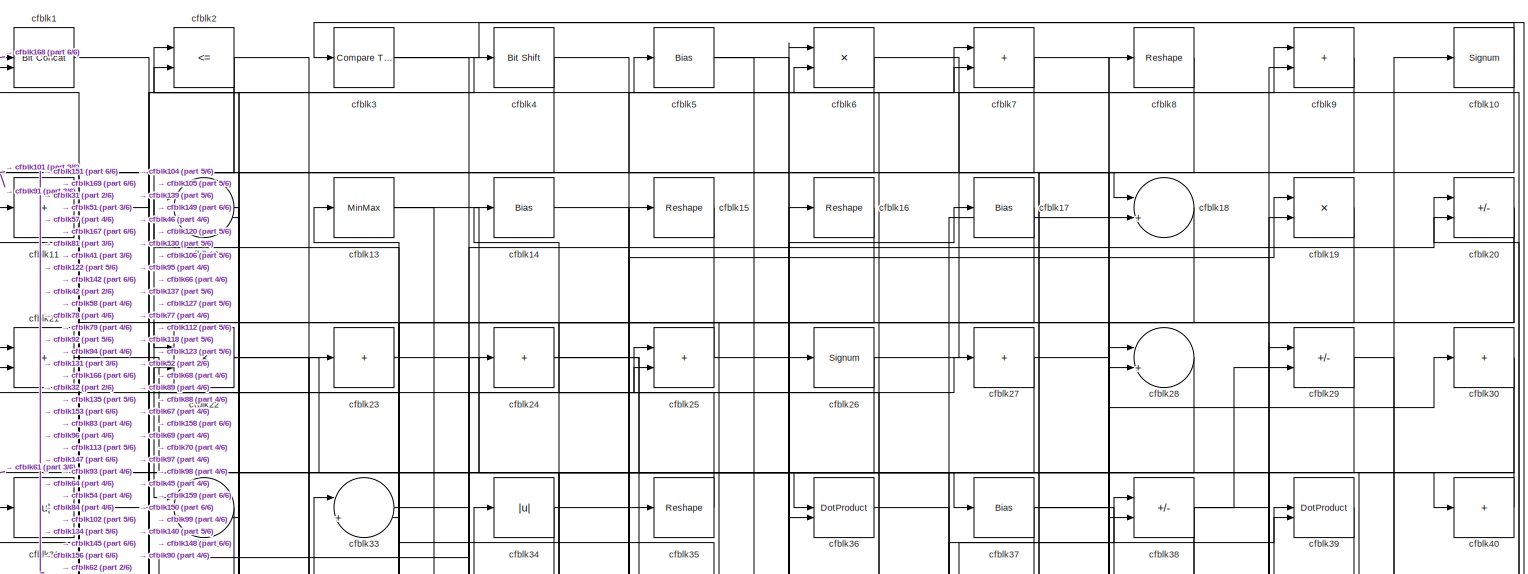
[diagram: root canvas - part 1/6, full width, top band]
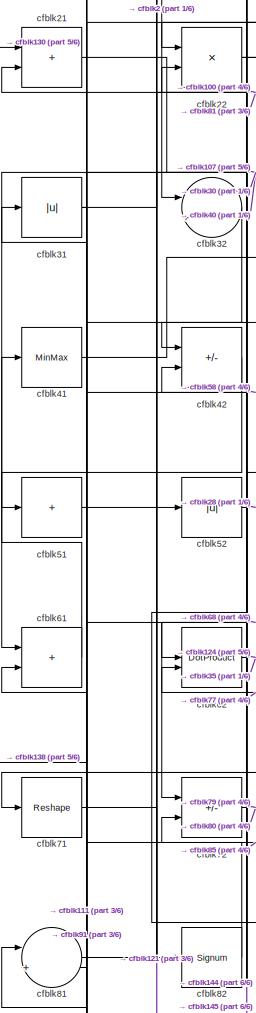
[diagram: root canvas - part 2/6, top left region]
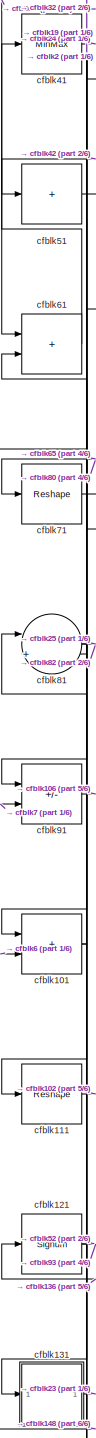
[diagram: root canvas - part 3/6, middle left region]
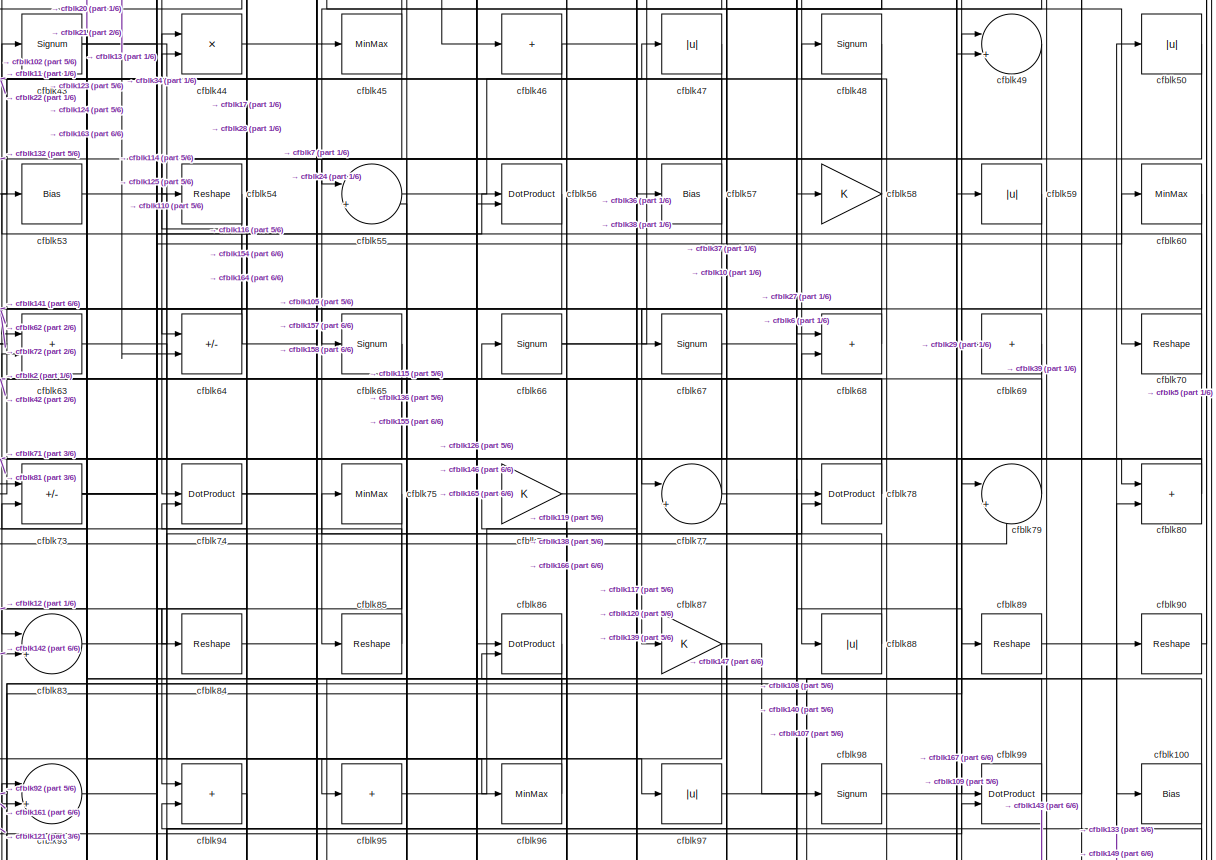
[diagram: root canvas - part 4/6, full width, middle band]
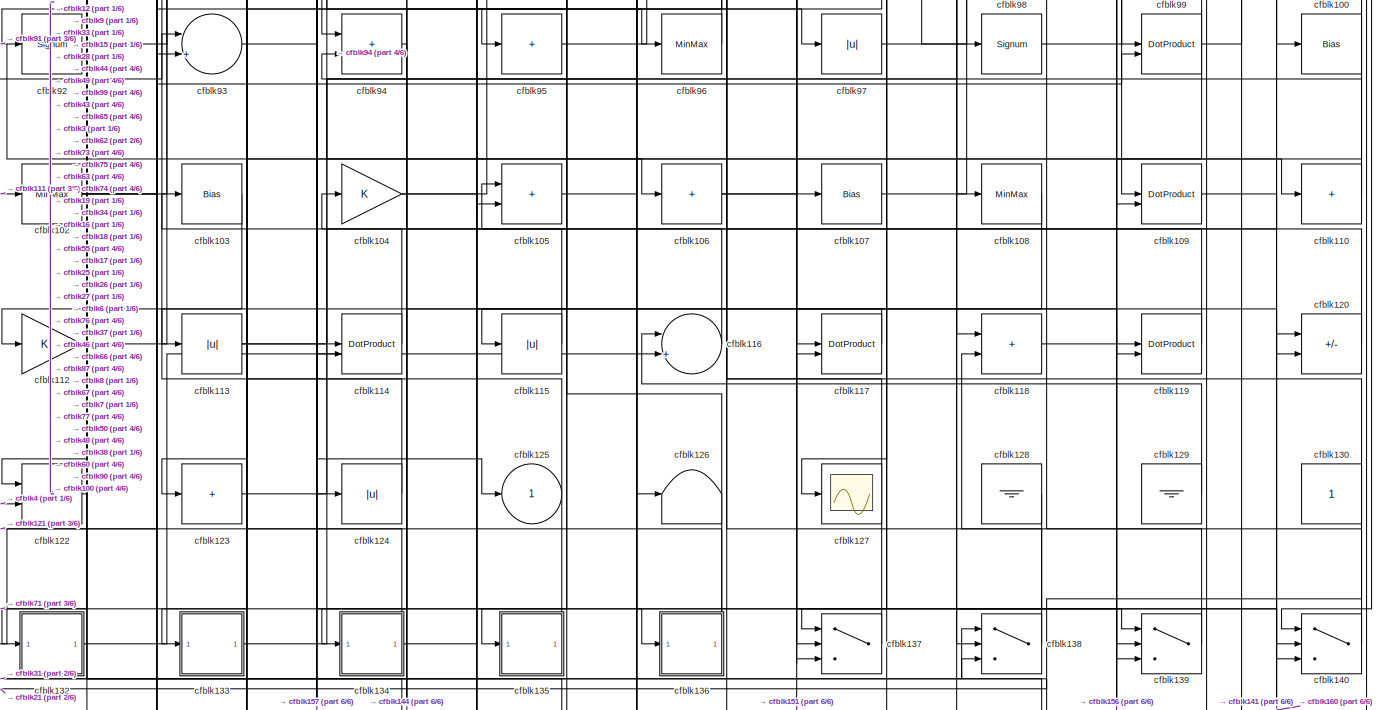
[diagram: root canvas - part 5/6, full width, bottom band]
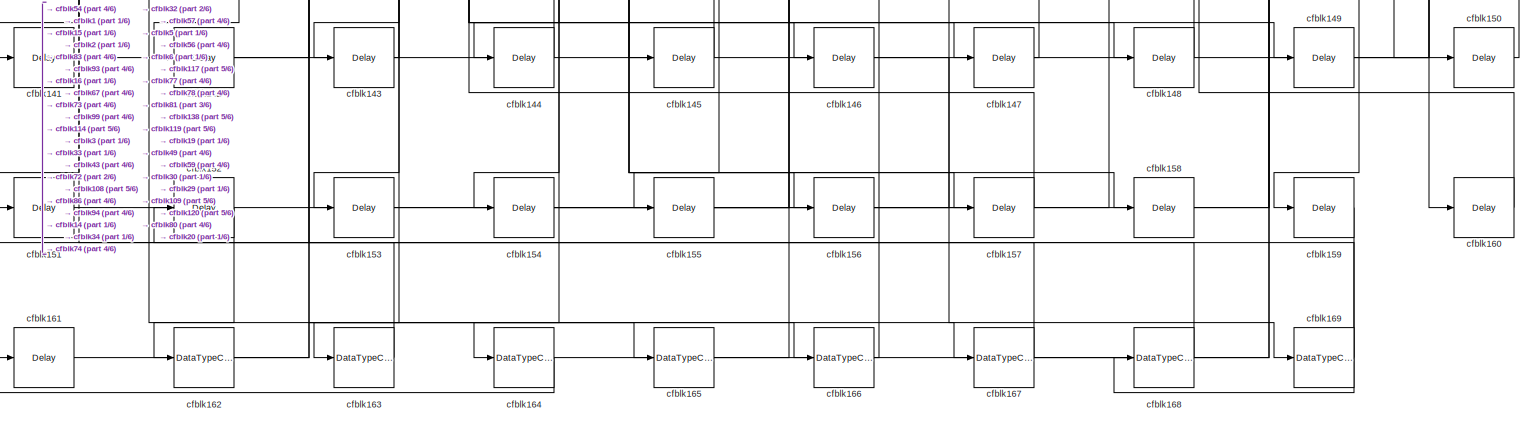
[diagram: root canvas - part 6/6, full width, bottom band]
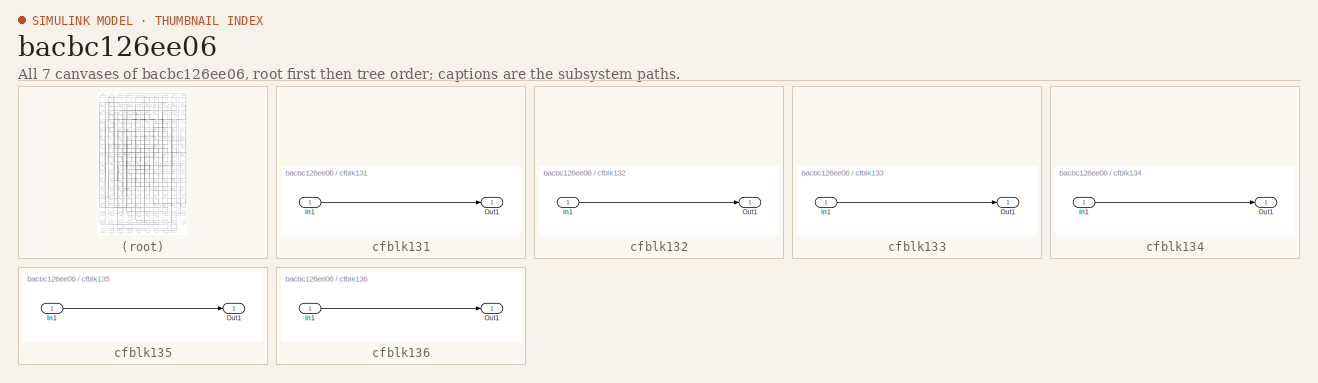
[diagram: thumbnail index - all 7 canvases of the model, root first then tree order]
MODEL slx_bacbc126ee06
KIND model
CONFIG AbsTol = auto
CONFIG EnableMultiTasking = off
CONFIG FixedStep = auto
CONFIG MaxStep = auto
CONFIG MinStep = auto
CONFIG RelTol = 1e-3
CONFIG SampleTimeConstraint = Unconstrained
CONFIG SolverName = VariableStepAuto
CONFIG StartTime = 0.0
CONFIG StopTime = 10.0
BLOCK [Reference] cfblk1  REF=hdlsllib/Logic and Bit
Operations/Bit Concat
  SourceBlock = hdlsllib/Logic and Bit\nOperations/Bit Concat
  SourceType = Bit Concat
BLOCK [Signum] cfblk10
BLOCK [Bias] cfblk100
  Bias = 0.0
  SaturateOnIntegerOverflow = off
BLOCK [Sum] cfblk101
  IconShape = rectangular
BLOCK [MinMax] cfblk102
BLOCK [Bias] cfblk103
  Bias = 0.0
  SaturateOnIntegerOverflow = off
BLOCK [Gain] cfblk104
BLOCK [Sum] cfblk105
  IconShape = rectangular
BLOCK [Sum] cfblk106
  IconShape = rectangular
  Inputs = +
BLOCK [Bias] cfblk107
  Bias = 0.0
  SaturateOnIntegerOverflow = off
BLOCK [MinMax] cfblk108
BLOCK [DotProduct] cfblk109
  OutDataTypeStr = Inherit: Inherit via internal rule
BLOCK [Sum] cfblk11
  IconShape = rectangular
  Inputs = +
BLOCK [Sum] cfblk110
  IconShape = rectangular
  Inputs = +
BLOCK [Reshape] cfblk111
BLOCK [Gain] cfblk112
BLOCK [Abs] cfblk113
  SaturateOnIntegerOverflow = off
BLOCK [DotProduct] cfblk114
  OutDataTypeStr = Inherit: Inherit via internal rule
BLOCK [Abs] cfblk115
  SaturateOnIntegerOverflow = off
BLOCK [Sum] cfblk116
  Inputs = |++
BLOCK [DotProduct] cfblk117
  OutDataTypeStr = Inherit: Inherit via internal rule
BLOCK [Sum] cfblk118
  IconShape = rectangular
BLOCK [DotProduct] cfblk119
  OutDataTypeStr = Inherit: Inherit via internal rule
BLOCK [Sum] cfblk12
  Inputs = |++
BLOCK [Sum] cfblk120
  IconShape = rectangular
  Inputs = +-
BLOCK [Signum] cfblk121
BLOCK [Sum] cfblk122
  IconShape = rectangular
BLOCK [Sum] cfblk123
  IconShape = rectangular
  Inputs = +
BLOCK [Abs] cfblk124
  SaturateOnIntegerOverflow = off
BLOCK [Outport] cfblk125
  VectorParamsAs1DForOutWhenUnconnected = off
BLOCK [Terminator] cfblk126
BLOCK [Scope] cfblk127
  Floating = off
  NumInputPorts = 1
  ScopeSpecificationString = Simulink.scopes.TimeScopeBlockCfg('CurrentConfiguration', extmgr.ConfigurationSet(extmgr.Configuration('Core','General UI',true),extmgr.Configuration('Core','Source UI',true),extmgr.Configuration('Sources','WiredSimulink',true,'DataLoggingVariableName','ScopeData2','DataLoggingSaveFormat','Array','DataLoggingLimitDataPoints',true,'DataLoggingDecimation','1'),extmgr.Configuration('Visuals','Time Do...<+868ch>
BLOCK [Ground] cfblk128
BLOCK [Ground] cfblk129
BLOCK [MinMax] cfblk13
BLOCK [Constant] cfblk130
  SampleTime = -1
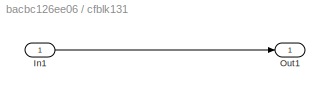
BLOCK [SubSystem] cfblk131
  LibrarySourceBlock = hdlsllib/Ports &\nSubsystems/Subsystem
BLOCK [Inport] cfblk131/In1
BLOCK [Outport] cfblk131/Out1
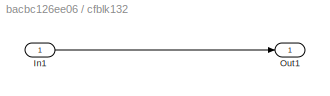
BLOCK [SubSystem] cfblk132
  LibrarySourceBlock = hdlsllib/Ports &\nSubsystems/Subsystem
BLOCK [Inport] cfblk132/In1
BLOCK [Outport] cfblk132/Out1
BLOCK [SubSystem] cfblk133
  LibrarySourceBlock = hdlsllib/Ports &\nSubsystems/Subsystem
BLOCK [Inport] cfblk133/In1
BLOCK [Outport] cfblk133/Out1
BLOCK [SubSystem] cfblk134
  LibrarySourceBlock = hdlsllib/Ports &\nSubsystems/Subsystem
BLOCK [Inport] cfblk134/In1
BLOCK [Outport] cfblk134/Out1
BLOCK [SubSystem] cfblk135
  LibrarySourceBlock = hdlsllib/Ports &\nSubsystems/Subsystem
BLOCK [Inport] cfblk135/In1
BLOCK [Outport] cfblk135/Out1
BLOCK [SubSystem] cfblk136
  LibrarySourceBlock = hdlsllib/Ports &\nSubsystems/Subsystem
BLOCK [Inport] cfblk136/In1
BLOCK [Outport] cfblk136/Out1
BLOCK [Switch] cfblk137
  InputSameDT = off
  SaturateOnIntegerOverflow = off
BLOCK [Switch] cfblk138
  InputSameDT = off
  SaturateOnIntegerOverflow = off
BLOCK [Switch] cfblk139
  InputSameDT = off
  SaturateOnIntegerOverflow = off
BLOCK [Bias] cfblk14
  Bias = 0.0
  SaturateOnIntegerOverflow = off
BLOCK [Switch] cfblk140
  InputSameDT = off
  SaturateOnIntegerOverflow = off
BLOCK [Delay] cfblk141
  InputPortMap = u0
  SampleTime = 1
BLOCK [Delay] cfblk142
  InputPortMap = u0
  SampleTime = 1
BLOCK [Delay] cfblk143
  InputPortMap = u0
  SampleTime = 1
BLOCK [Delay] cfblk144
  InputPortMap = u0
  SampleTime = 1
BLOCK [Delay] cfblk145
  InputPortMap = u0
  SampleTime = 1
BLOCK [Delay] cfblk146
  InputPortMap = u0
  SampleTime = 1
BLOCK [Delay] cfblk147
  InputPortMap = u0
  SampleTime = 1
BLOCK [Delay] cfblk148
  InputPortMap = u0
  SampleTime = 1
BLOCK [Delay] cfblk149
  InputPortMap = u0
  SampleTime = 1
BLOCK [Reshape] cfblk15
BLOCK [Delay] cfblk150
  InputPortMap = u0
  SampleTime = 1
BLOCK [Delay] cfblk151
  InputPortMap = u0
  SampleTime = 1
BLOCK [Delay] cfblk152
  InputPortMap = u0
  SampleTime = 1
BLOCK [Delay] cfblk153
  InputPortMap = u0
  SampleTime = 1
BLOCK [Delay] cfblk154
  InputPortMap = u0
  SampleTime = 1
BLOCK [Delay] cfblk155
  InputPortMap = u0
  SampleTime = 1
BLOCK [Delay] cfblk156
  InputPortMap = u0
  SampleTime = 1
BLOCK [Delay] cfblk157
  InputPortMap = u0
  SampleTime = 1
BLOCK [Delay] cfblk158
  InputPortMap = u0
  SampleTime = 1
BLOCK [Delay] cfblk159
  InputPortMap = u0
  SampleTime = 1
BLOCK [Reshape] cfblk16
BLOCK [Delay] cfblk160
  InputPortMap = u0
  SampleTime = 1
BLOCK [Delay] cfblk161
  InputPortMap = u0
  SampleTime = 1
BLOCK [DataTypeConversion] cfblk162
  OutDataTypeStr = uint8
  RndMeth = Floor
  SaturateOnIntegerOverflow = off
BLOCK [DataTypeConversion] cfblk163
  OutDataTypeStr = uint8
  RndMeth = Floor
  SaturateOnIntegerOverflow = off
BLOCK [DataTypeConversion] cfblk164
  RndMeth = Floor
  SaturateOnIntegerOverflow = off
BLOCK [DataTypeConversion] cfblk165
  OutDataTypeStr = uint8
  RndMeth = Floor
  SaturateOnIntegerOverflow = off
BLOCK [DataTypeConversion] cfblk166
  OutDataTypeStr = uint8
  RndMeth = Floor
  SaturateOnIntegerOverflow = off
BLOCK [DataTypeConversion] cfblk167
  RndMeth = Floor
  SaturateOnIntegerOverflow = off
BLOCK [DataTypeConversion] cfblk168
  OutDataTypeStr = uint8
  RndMeth = Floor
  SaturateOnIntegerOverflow = off
BLOCK [DataTypeConversion] cfblk169
  OutDataTypeStr = uint8
  RndMeth = Floor
  SaturateOnIntegerOverflow = off
BLOCK [Bias] cfblk17
  Bias = 0.0
  SaturateOnIntegerOverflow = off
BLOCK [Sum] cfblk18
  Inputs = |++
BLOCK [Product] cfblk19
  Inputs = */
  RndMeth = Zero
  SaturateOnIntegerOverflow = on
BLOCK [RelationalOperator] cfblk2
  InputSameDT = off
  Operator = <=
  OutDataTypeStr = boolean
BLOCK [Sum] cfblk20
  IconShape = rectangular
  Inputs = +-
BLOCK [Sum] cfblk21
  IconShape = rectangular
BLOCK [Product] cfblk22
  Inputs = */
  RndMeth = Zero
  SaturateOnIntegerOverflow = on
BLOCK [Sum] cfblk23
  IconShape = rectangular
  Inputs = +
BLOCK [Sum] cfblk24
  IconShape = rectangular
  Inputs = +
BLOCK [Sum] cfblk25
  IconShape = rectangular
BLOCK [Signum] cfblk26
BLOCK [Sum] cfblk27
  IconShape = rectangular
  Inputs = +
BLOCK [Sum] cfblk28
  Inputs = |++
BLOCK [Sum] cfblk29
  IconShape = rectangular
  Inputs = +-
BLOCK [Reference] cfblk3  REF=hdlsllib/Logic and Bit
Operations/Compare
To Zero
  SourceBlock = hdlsllib/Logic and Bit\nOperations/Compare\nTo Zero
  SourceType = Compare To Zero
BLOCK [Sum] cfblk30
  IconShape = rectangular
  Inputs = +
BLOCK [Abs] cfblk31
  SaturateOnIntegerOverflow = off
BLOCK [Sum] cfblk32
  Inputs = |++
BLOCK [Sum] cfblk33
  Inputs = |++
BLOCK [Abs] cfblk34
  SaturateOnIntegerOverflow = off
BLOCK [Reshape] cfblk35
BLOCK [DotProduct] cfblk36
  OutDataTypeStr = Inherit: Inherit via internal rule
BLOCK [Bias] cfblk37
  Bias = 0.0
  SaturateOnIntegerOverflow = off
BLOCK [Sum] cfblk38
  IconShape = rectangular
  Inputs = +-
BLOCK [DotProduct] cfblk39
  OutDataTypeStr = Inherit: Inherit via internal rule
BLOCK [Reference] cfblk4  REF=hdlsllib/Logic and Bit
Operations/Bit Shift
  SourceBlock = hdlsllib/Logic and Bit\nOperations/Bit Shift
  SourceType = Bit Shift
BLOCK [Sum] cfblk40
  IconShape = rectangular
  Inputs = +
BLOCK [MinMax] cfblk41
BLOCK [Sum] cfblk42
  IconShape = rectangular
  Inputs = +-
BLOCK [Signum] cfblk43
BLOCK [Product] cfblk44
  Inputs = */
  RndMeth = Zero
  SaturateOnIntegerOverflow = on
BLOCK [MinMax] cfblk45
BLOCK [Sum] cfblk46
  IconShape = rectangular
  Inputs = +
BLOCK [Abs] cfblk47
  SaturateOnIntegerOverflow = off
BLOCK [Signum] cfblk48
BLOCK [Sum] cfblk49
  Inputs = |++
BLOCK [Bias] cfblk5
  Bias = 0.0
  SaturateOnIntegerOverflow = off
BLOCK [Abs] cfblk50
  SaturateOnIntegerOverflow = off
BLOCK [Sum] cfblk51
  IconShape = rectangular
  Inputs = +
BLOCK [Abs] cfblk52
  SaturateOnIntegerOverflow = off
BLOCK [Bias] cfblk53
  Bias = 0.0
  SaturateOnIntegerOverflow = off
BLOCK [Reshape] cfblk54
BLOCK [Sum] cfblk55
  Inputs = |++
BLOCK [DotProduct] cfblk56
  OutDataTypeStr = Inherit: Inherit via internal rule
BLOCK [Bias] cfblk57
  Bias = 0.0
  SaturateOnIntegerOverflow = off
BLOCK [Gain] cfblk58
BLOCK [Abs] cfblk59
  SaturateOnIntegerOverflow = off
BLOCK [Product] cfblk6
  Inputs = */
  RndMeth = Zero
  SaturateOnIntegerOverflow = on
BLOCK [MinMax] cfblk60
BLOCK [Sum] cfblk61
  IconShape = rectangular
BLOCK [DotProduct] cfblk62
  OutDataTypeStr = Inherit: Inherit via internal rule
BLOCK [Sum] cfblk63
  IconShape = rectangular
BLOCK [Sum] cfblk64
  IconShape = rectangular
  Inputs = +-
BLOCK [Signum] cfblk65
BLOCK [Signum] cfblk66
BLOCK [Signum] cfblk67
BLOCK [Sum] cfblk68
  IconShape = rectangular
BLOCK [Sum] cfblk69
  IconShape = rectangular
  Inputs = +
BLOCK [Sum] cfblk7
  IconShape = rectangular
BLOCK [Reshape] cfblk70
BLOCK [Reshape] cfblk71
BLOCK [Sum] cfblk72
  IconShape = rectangular
  Inputs = +-
BLOCK [Sum] cfblk73
  IconShape = rectangular
  Inputs = +-
BLOCK [DotProduct] cfblk74
  OutDataTypeStr = Inherit: Inherit via internal rule
BLOCK [MinMax] cfblk75
BLOCK [Gain] cfblk76
BLOCK [Sum] cfblk77
  Inputs = |++
BLOCK [DotProduct] cfblk78
  OutDataTypeStr = Inherit: Inherit via internal rule
BLOCK [Sum] cfblk79
  Inputs = |++
BLOCK [Reshape] cfblk8
BLOCK [Sum] cfblk80
  IconShape = rectangular
BLOCK [Sum] cfblk81
  Inputs = |++
BLOCK [Signum] cfblk82
BLOCK [Sum] cfblk83
  Inputs = |++
BLOCK [Reshape] cfblk84
BLOCK [Reshape] cfblk85
BLOCK [DotProduct] cfblk86
  OutDataTypeStr = Inherit: Inherit via internal rule
BLOCK [Gain] cfblk87
BLOCK [Abs] cfblk88
  SaturateOnIntegerOverflow = off
BLOCK [Reshape] cfblk89
BLOCK [Sum] cfblk9
  IconShape = rectangular
BLOCK [Reshape] cfblk90
BLOCK [Sum] cfblk91
  IconShape = rectangular
  Inputs = +-
BLOCK [Signum] cfblk92
BLOCK [Sum] cfblk93
  Inputs = |++
BLOCK [Sum] cfblk94
  IconShape = rectangular
BLOCK [Sum] cfblk95
  IconShape = rectangular
  Inputs = +
BLOCK [MinMax] cfblk96
BLOCK [Abs] cfblk97
  SaturateOnIntegerOverflow = off
BLOCK [Signum] cfblk98
BLOCK [DotProduct] cfblk99
  OutDataTypeStr = Inherit: Inherit via internal rule
NET cfblk100:1 -> cfblk109:2, cfblk21:2
NET cfblk101:1 -> cfblk131:1, cfblk61:2
NET cfblk102:1 -> cfblk15:1, cfblk44:2, cfblk99:2
LINE cfblk103:1 -> cfblk112:1
NET cfblk104:1 -> cfblk119:2, cfblk16:1
LINE cfblk105:1 -> cfblk17:1
NET cfblk106:1 -> cfblk137:2, cfblk18:2
LINE cfblk107:1 -> cfblk50:1
LINE cfblk108:1 -> cfblk144:1
LINE cfblk109:1 -> cfblk160:1
NET cfblk10:1 -> cfblk3:1, cfblk77:1
LINE cfblk110:1 -> cfblk74:2
LINE cfblk111:1 -> cfblk102:1
LINE cfblk112:1 -> cfblk28:1
NET cfblk113:1 -> cfblk26:1, cfblk27:1
LINE cfblk114:1 -> cfblk104:1
LINE cfblk115:1 -> cfblk103:1
LINE cfblk116:1 -> cfblk94:2
LINE cfblk117:1 -> cfblk113:1
LINE cfblk118:1 -> cfblk9:2
LINE cfblk119:1 -> cfblk66:1
LINE cfblk11:1 -> cfblk4:1
LINE cfblk120:1 -> cfblk6:2
NET cfblk121:1 -> cfblk52:1, cfblk93:1
LINE cfblk122:1 -> cfblk12:2
LINE cfblk123:1 -> cfblk8:1
LINE cfblk124:1 -> cfblk43:1
LINE cfblk128:1 -> cfblk138:2
LINE cfblk129:1 -> cfblk116:1
LINE cfblk12:1 -> cfblk94:1
NET cfblk130:1 -> cfblk21:1, cfblk25:1
LINE cfblk131/In1:1 -> cfblk131/Out1:1
LINE cfblk131:1 -> cfblk23:1
LINE cfblk132/In1:1 -> cfblk132/Out1:1
LINE cfblk132:1 -> cfblk116:2
LINE cfblk133/In1:1 -> cfblk133/Out1:1
LINE cfblk133:1 -> cfblk90:1
LINE cfblk134/In1:1 -> cfblk134/Out1:1
NET cfblk134:1 -> cfblk19:1, cfblk33:2
LINE cfblk135/In1:1 -> cfblk135/Out1:1
LINE cfblk135:1 -> cfblk33:1
LINE cfblk136/In1:1 -> cfblk136/Out1:1
NET cfblk136:1 -> cfblk121:1, cfblk55:2
LINE cfblk137:1 -> cfblk105:1
LINE cfblk138:1 -> cfblk76:1
LINE cfblk139:1 -> cfblk48:1
NET cfblk13:1 -> cfblk36:2, cfblk64:2
LINE cfblk140:1 -> cfblk118:2
LINE cfblk141:1 -> cfblk120:1
LINE cfblk142:1 -> cfblk83:2
LINE cfblk143:1 -> cfblk73:2
LINE cfblk144:1 -> cfblk72:2
LINE cfblk145:1 -> cfblk32:2
LINE cfblk146:1 -> cfblk169:1
LINE cfblk147:1 -> cfblk77:2
LINE cfblk148:1 -> cfblk81:1
LINE cfblk149:1 -> cfblk80:2
LINE cfblk14:1 -> cfblk145:1
LINE cfblk150:1 -> cfblk20:2
LINE cfblk151:1 -> cfblk117:2
LINE cfblk152:1 -> cfblk162:1
LINE cfblk153:1 -> cfblk6:1
LINE cfblk154:1 -> cfblk78:1
LINE cfblk155:1 -> cfblk56:2
LINE cfblk156:1 -> cfblk119:1
LINE cfblk157:1 -> cfblk114:1
LINE cfblk158:1 -> cfblk19:2
LINE cfblk159:1 -> cfblk168:1
LINE cfblk15:1 -> cfblk142:1
LINE cfblk160:1 -> cfblk138:3
LINE cfblk161:1 -> cfblk93:2
LINE cfblk162:1 -> cfblk165:1
LINE cfblk163:1 -> cfblk152:1
NET cfblk164:1 -> cfblk161:1, cfblk59:1
LINE cfblk165:1 -> cfblk86:1
LINE cfblk166:1 -> cfblk86:2
NET cfblk167:1 -> cfblk49:2, cfblk73:1
LINE cfblk168:1 -> cfblk1:1
LINE cfblk169:1 -> cfblk1:2
LINE cfblk16:1 -> cfblk153:1
LINE cfblk17:1 -> cfblk84:1
LINE cfblk18:1 -> cfblk135:1
LINE cfblk19:1 -> cfblk101:1
LINE cfblk1:1 -> cfblk167:1
NET cfblk20:1 -> cfblk38:2, cfblk83:1
LINE cfblk21:1 -> cfblk107:1
NET cfblk22:1 -> cfblk68:1, cfblk96:1
LINE cfblk23:1 -> cfblk37:1
NET cfblk24:1 -> cfblk69:1, cfblk70:1
NET cfblk25:1 -> cfblk139:2, cfblk22:1
NET cfblk26:1 -> cfblk134:1, cfblk9:1
NET cfblk27:1 -> cfblk61:1, cfblk89:1
LINE cfblk28:1 -> cfblk54:1
NET cfblk29:1 -> cfblk150:1, cfblk151:1
NET cfblk2:1 -> cfblk166:1, cfblk32:1, cfblk51:1
NET cfblk30:1 -> cfblk159:1, cfblk42:1
NET cfblk31:1 -> cfblk138:1, cfblk40:1
LINE cfblk32:1 -> cfblk111:1
LINE cfblk33:1 -> cfblk147:1
NET cfblk34:1 -> cfblk122:1, cfblk156:1
LINE cfblk35:1 -> cfblk14:1
LINE cfblk36:1 -> cfblk57:1
NET cfblk37:1 -> cfblk137:3, cfblk30:1, cfblk88:1
NET cfblk38:1 -> cfblk137:1, cfblk140:3, cfblk29:2, cfblk67:1
LINE cfblk39:1 -> cfblk45:1
NET cfblk3:1 -> cfblk140:1, cfblk148:1
LINE cfblk40:1 -> cfblk36:1
LINE cfblk41:1 -> cfblk24:1
LINE cfblk42:1 -> cfblk91:1
NET cfblk43:1 -> cfblk126:1, cfblk146:1
LINE cfblk44:1 -> cfblk55:1
NET cfblk45:1 -> cfblk13:1, cfblk64:1
NET cfblk46:1 -> cfblk115:1, cfblk117:1
LINE cfblk47:1 -> cfblk85:1
LINE cfblk48:1 -> cfblk132:1
LINE cfblk49:1 -> cfblk105:2
NET cfblk4:1 -> cfblk122:2, cfblk18:1
LINE cfblk50:1 -> cfblk74:1
LINE cfblk51:1 -> cfblk7:1
LINE cfblk52:1 -> cfblk28:2
LINE cfblk53:1 -> cfblk97:1
LINE cfblk54:1 -> cfblk141:1
LINE cfblk55:1 -> cfblk47:1
LINE cfblk56:1 -> cfblk65:1
NET cfblk57:1 -> cfblk11:1, cfblk155:1
NET cfblk58:1 -> cfblk22:2, cfblk72:1
LINE cfblk59:1 -> cfblk87:1
NET cfblk5:1 -> cfblk149:1, cfblk46:1
LINE cfblk60:1 -> cfblk109:1
LINE cfblk61:1 -> cfblk41:1
NET cfblk62:1 -> cfblk124:1, cfblk35:1
LINE cfblk63:1 -> cfblk110:1
NET cfblk64:1 -> cfblk34:1, cfblk63:1, cfblk7:2
NET cfblk65:1 -> cfblk123:1, cfblk81:2
NET cfblk66:1 -> cfblk139:3, cfblk39:1
NET cfblk67:1 -> cfblk140:2, cfblk163:1
LINE cfblk68:1 -> cfblk62:1
LINE cfblk69:1 -> cfblk99:1
NET cfblk6:1 -> cfblk101:2, cfblk58:1
NET cfblk70:1 -> cfblk53:1, cfblk95:1
LINE cfblk71:1 -> cfblk136:1
NET cfblk72:1 -> cfblk79:2, cfblk80:1
NET cfblk73:1 -> cfblk125:1, cfblk139:1, cfblk56:1, cfblk60:1
NET cfblk74:1 -> cfblk157:1, cfblk158:1
LINE cfblk75:1 -> cfblk114:2
LINE cfblk76:1 -> cfblk120:2
NET cfblk77:1 -> cfblk108:1, cfblk42:2
NET cfblk78:1 -> cfblk2:2, cfblk63:2
LINE cfblk79:1 -> cfblk2:1
NET cfblk7:1 -> cfblk118:1, cfblk91:2
NET cfblk80:1 -> cfblk71:1, cfblk79:1
NET cfblk81:1 -> cfblk25:2, cfblk82:1
LINE cfblk82:1 -> cfblk31:1
LINE cfblk83:1 -> cfblk78:2
LINE cfblk84:1 -> cfblk68:2
LINE cfblk85:1 -> cfblk62:2
LINE cfblk86:1 -> cfblk164:1
NET cfblk87:1 -> cfblk133:1, cfblk98:1
LINE cfblk88:1 -> cfblk75:1
LINE cfblk89:1 -> cfblk100:1
LINE cfblk8:1 -> cfblk127:1
LINE cfblk90:1 -> cfblk5:1
LINE cfblk91:1 -> cfblk106:1
LINE cfblk92:1 -> cfblk49:1
LINE cfblk93:1 -> cfblk20:1
LINE cfblk94:1 -> cfblk154:1
LINE cfblk95:1 -> cfblk38:1
LINE cfblk96:1 -> cfblk12:1
LINE cfblk97:1 -> cfblk29:1
LINE cfblk98:1 -> cfblk39:2
NET cfblk99:1 -> cfblk10:1, cfblk143:1, cfblk44:1
LINE cfblk9:1 -> cfblk92:1
note: NET lines group one-source signal fan-out (src -> all destinations, sorted); 1:1 wires keep LINE
